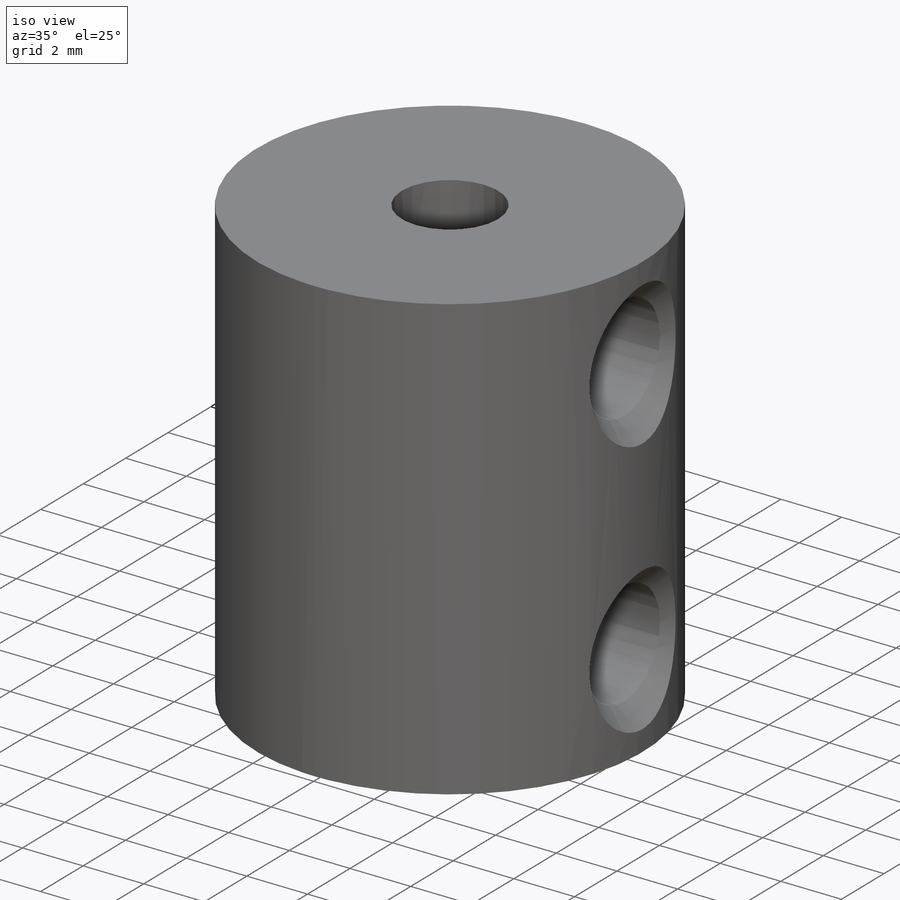
[diagram: iso view]
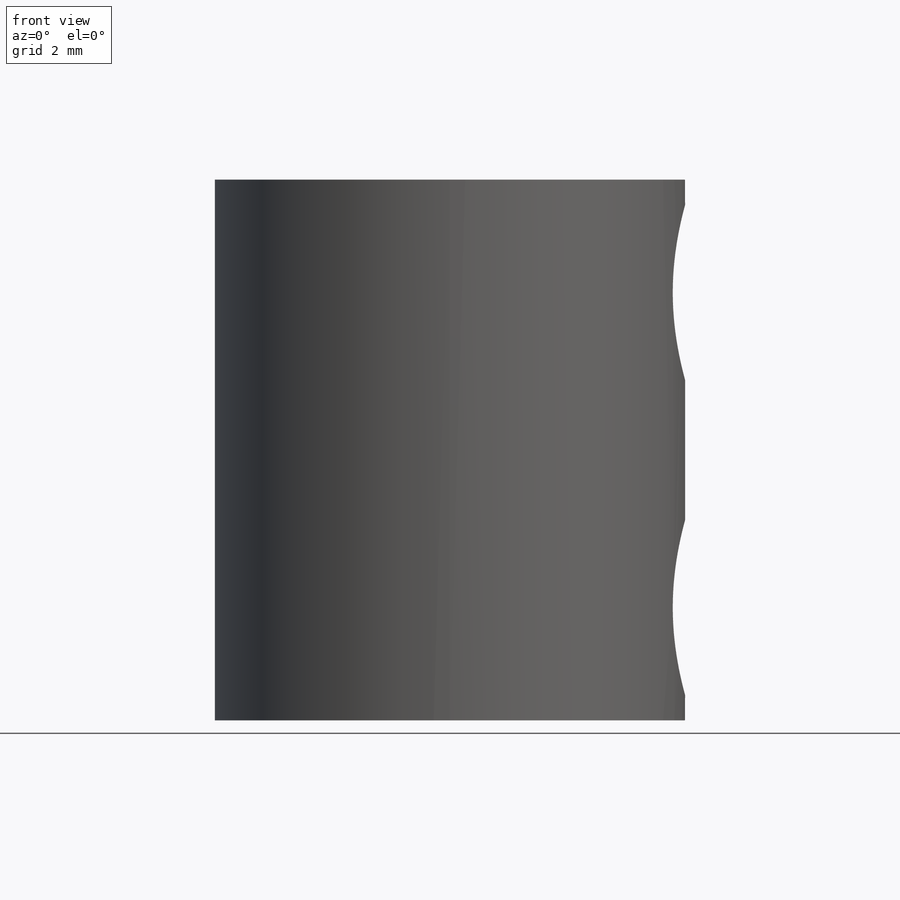
[diagram: front view]
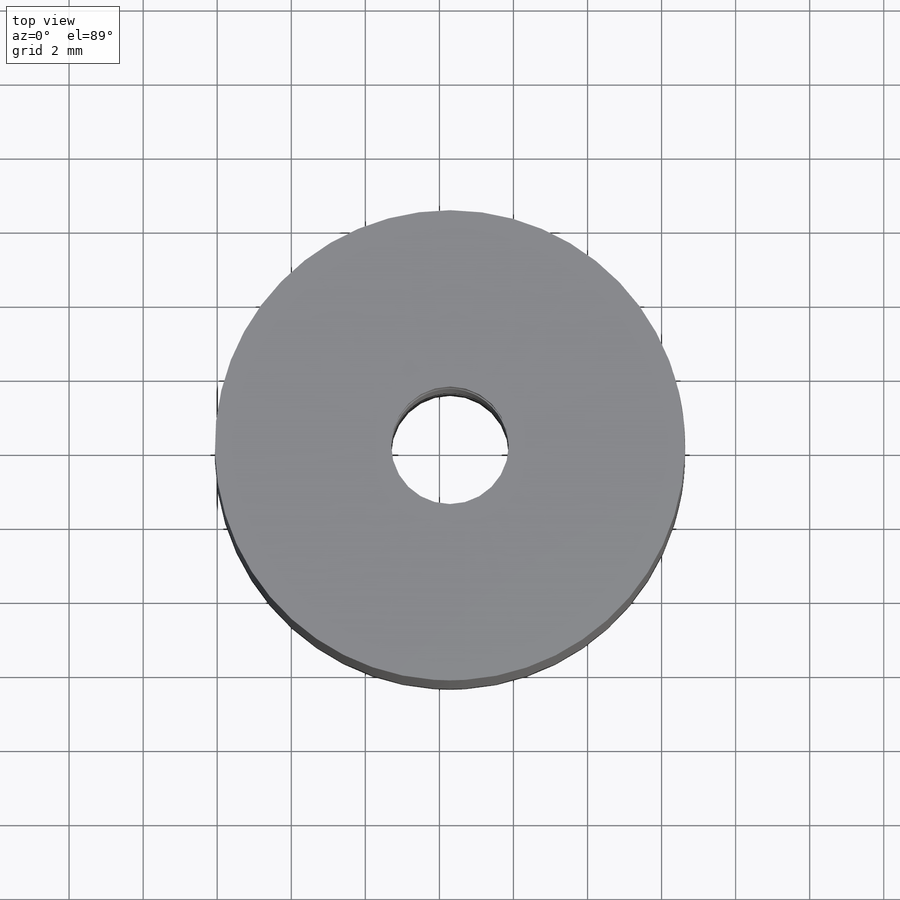
[diagram: top view]
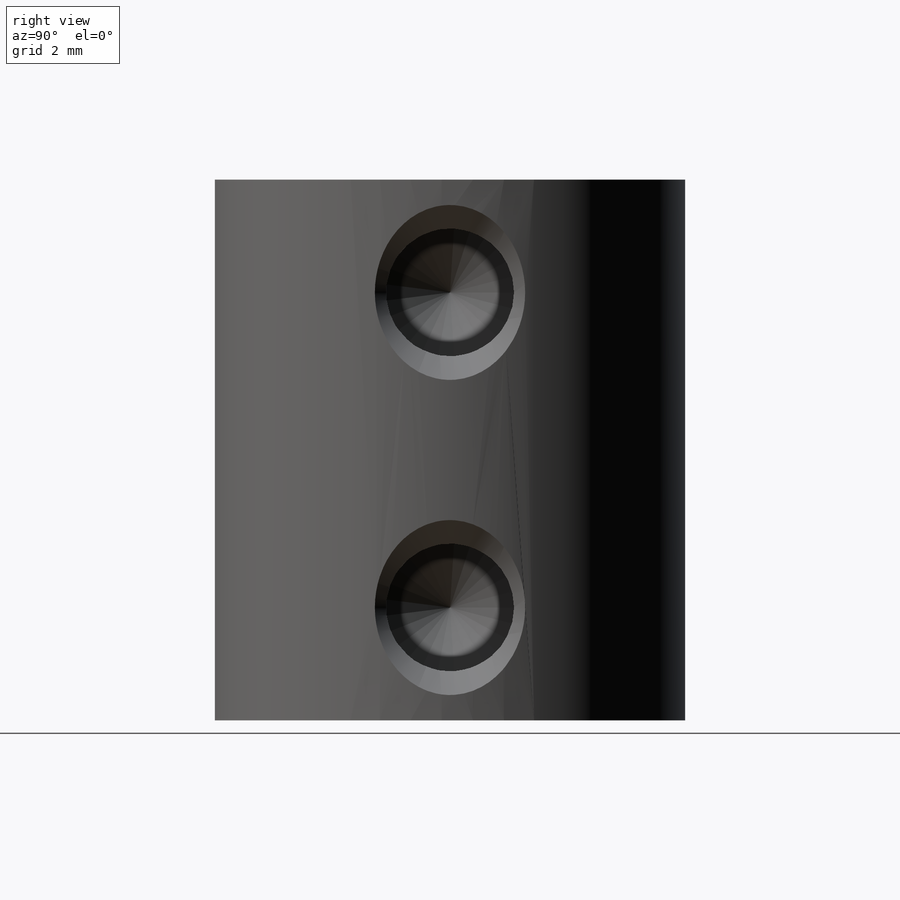
[diagram: right view]
SOLIDWORKS PART (.sldprt)
format: sldprt  version: not decoded by parser v0  size: 280,064 bytes
history: native  units: mm
features: sketch x6, thread x4, plane x2, material x1, extrude x1, cut_extrude x1, hole x1, mirror x1, move_body x1 (+13 scaffold rows collapsed; 1 parser-record rows omitted)
feature tree (32):
  scaffold x13  (default folders/planes/origin — collapsed)
  material  "Material <not specified>"
  sketch  "Sketch1"  dims[D1=5.334mm]
  extrude  "Boss-Extrude1"  Depth=14.605mm
  sketch  "Sketch2"  dims[D1=~1.44502mm]
  cut_extrude  "Cut-Extrude1"  [1 undecoded]
  plane  "Plane1"
  sketch  "Sketch11"
  sketch  "Sketch15"  dims[D1=3.048mm]
  hole  "#8-32 Tapped Hole3"  Diameter=3.4544mm Depth=8.89mm
  sketch  "3DSketch4"  dims[D1=3.048mm]
  sketch  "Sketch16"  dims[hole-wizard template sketch: 40 standard entries collapsed; hole parameters kept: c13.Tap Drill Depth=8.89mm c13.Near C'Sink Dia.=4.7244mm c13.D4=~33.297463mm c13.Near C'Sink Angle=90.0deg c14.D5=~14.816244mm c14.Drill Angle=118.0deg]
  thread  "Hole Thread4"  Diameter=6.35mm  [1 undecoded]
  thread  "Hole Thread5"  Diameter=6.35mm  [1 undecoded]
  thread  "Hole Thread6"  Diameter=6.35mm  [1 undecoded]
  thread  "Hole Thread7"  Diameter=6.35mm  [1 undecoded]
  plane  "Plane5"  Offset=7.3025mm
  mirror  "Mirror2"
  move_body  "Body-Move/Copy3"
  parser-record x1  (decoder bookkeeping rows leaked as tree rows — omitted from the tree; the rows remain in map.json)
decode coverage: 11 of 15 modeling features carry decoded parameters
note: ~ marks probable driven/reference dimensions
note: 5 parameter values undecoded
note: suppression state not decoded; provenance and decode notes live in map.json
